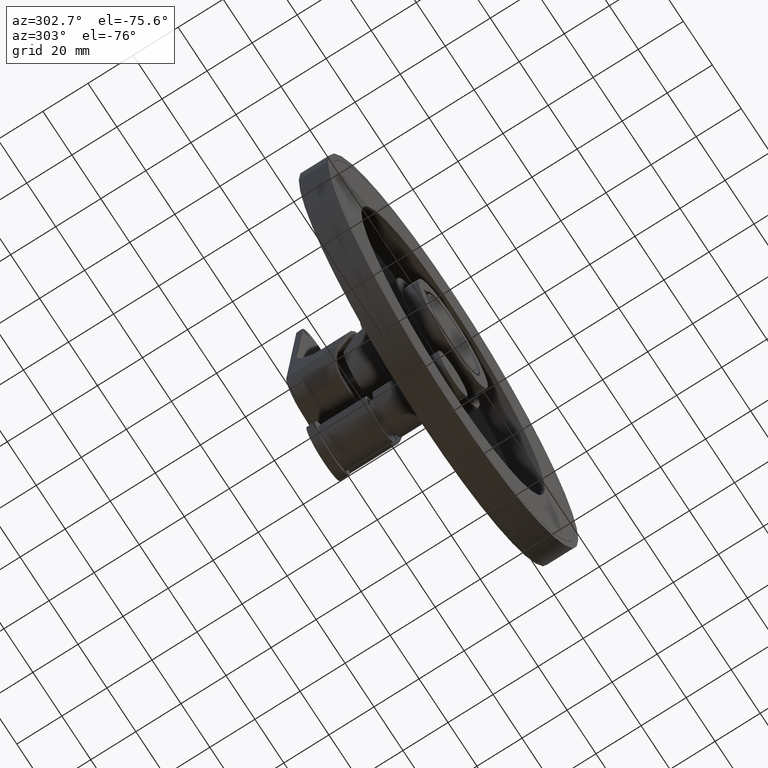
[diagram: clean part render]
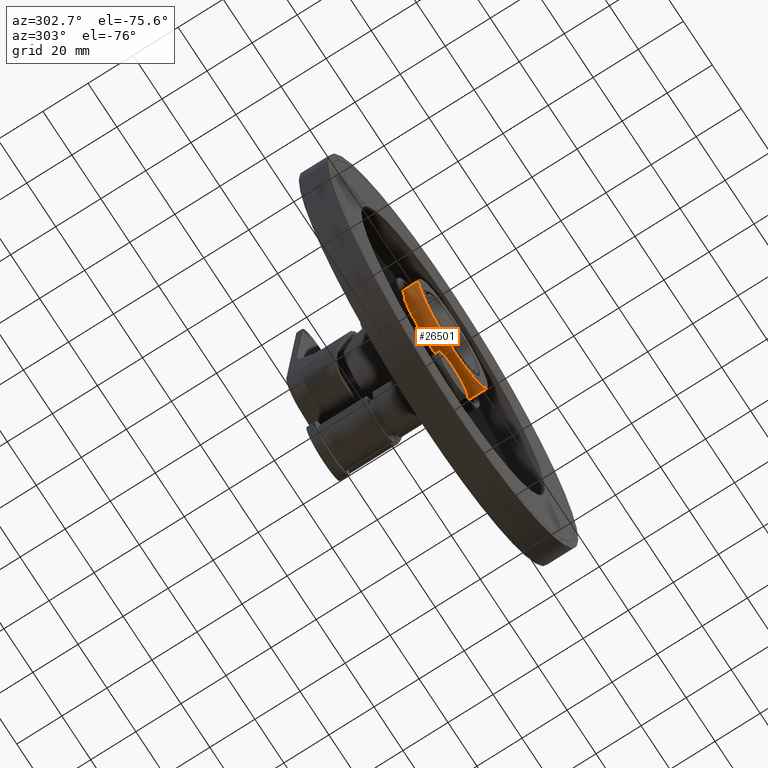
[diagram: same view with one face highlighted and labeled with its STEP entity id]
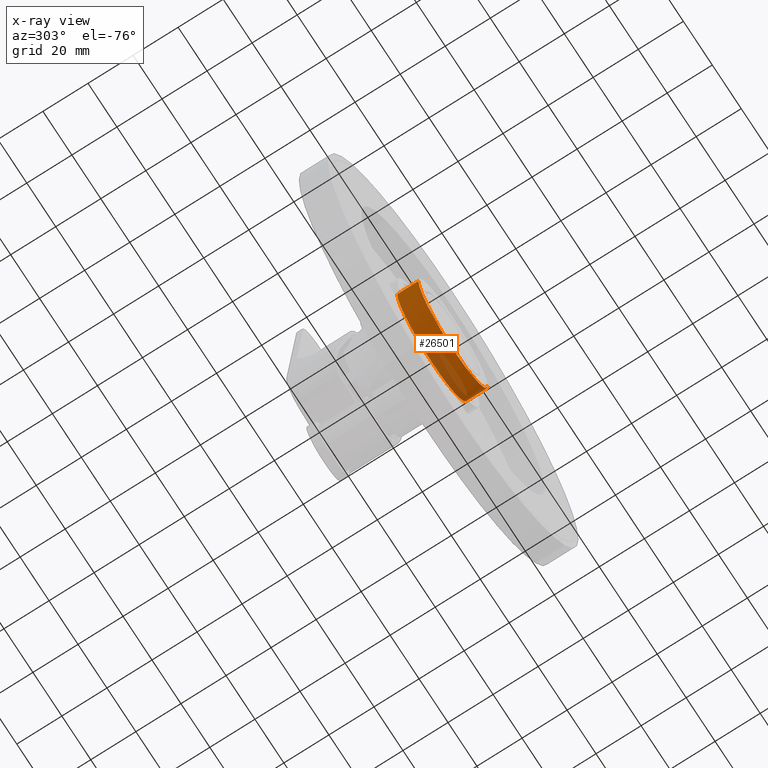
[diagram: x-ray of the same camera — body ghosted, the highlighted face saturated]
A machine part, auxiliary view. The second image highlights one B-rep face of the part: STEP entity #26501.
The next image is the same camera in x-ray: the body ghosted, the highlighted face saturated — about 25% of this face is hidden behind the body in this view.
In plain terms, the highlighted cylindrical surface (partial cylindrical patch) has radius 24.05 mm, axis along (0, -1, 0).
Its self-contained STEP definition (entity closure, byte-faithful):
#7095=CARTESIAN_POINT('',(0.E0,6.29E1,2.55E1));
#7096=DIRECTION('',(0.E0,-1.E0,0.E0));
#7097=DIRECTION('',(0.E0,0.E0,-1.E0));
#7098=AXIS2_PLACEMENT_3D('',#7095,#7096,#7097);
#7100=CARTESIAN_POINT('',(0.E0,6.29E1,2.55E1));
#7101=DIRECTION('',(0.E0,-1.E0,0.E0));
#7102=DIRECTION('',(-1.E0,0.E0,0.E0));
#7103=AXIS2_PLACEMENT_3D('',#7100,#7101,#7102);
#7105=DIRECTION('',(0.E0,1.E0,0.E0));
#7106=VECTOR('',#7105,9.4E0);
#7107=CARTESIAN_POINT('',(-2.405E1,5.35E1,2.55E1));
#7108=LINE('',#7107,#7106);
#7109=CARTESIAN_POINT('',(0.E0,5.35E1,2.55E1));
#7110=DIRECTION('',(0.E0,-1.E0,0.E0));
#7111=DIRECTION('',(-1.E0,0.E0,0.E0));
#7112=AXIS2_PLACEMENT_3D('',#7109,#7110,#7111);
#7114=DIRECTION('',(0.E0,1.E0,0.E0));
#7115=VECTOR('',#7114,9.4E0);
#7116=CARTESIAN_POINT('',(2.405E1,5.35E1,2.55E1));
#7117=LINE('',#7116,#7115);
#14774=CARTESIAN_POINT('',(2.405E1,5.35E1,2.55E1));
#14775=CARTESIAN_POINT('',(-2.405E1,5.35E1,2.55E1));
#14776=VERTEX_POINT('',#14774);
#14777=VERTEX_POINT('',#14775);
#17311=CARTESIAN_POINT('',(2.405E1,6.29E1,2.55E1));
#17313=VERTEX_POINT('',#17311);
#17317=CARTESIAN_POINT('',(-2.405E1,6.29E1,2.55E1));
#17318=VERTEX_POINT('',#17317);
#17321=CARTESIAN_POINT('',(0.E0,6.29E1,1.45E0));
#17322=VERTEX_POINT('',#17321);
#26489=CARTESIAN_POINT('',(0.E0,8.23E1,2.55E1));
#26490=DIRECTION('',(0.E0,-1.E0,0.E0));
#26491=DIRECTION('',(-1.E0,0.E0,0.E0));
#26492=AXIS2_PLACEMENT_3D('',#26489,#26490,#26491);
#26493=CYLINDRICAL_SURFACE('',#26492,2.405E1);
#26494=ORIENTED_EDGE('',*,*,#26436,.F.);
#26495=ORIENTED_EDGE('',*,*,#26467,.F.);
#26496=ORIENTED_EDGE('',*,*,#26415,.F.);
#26497=ORIENTED_EDGE('',*,*,#26386,.T.);
#26498=ORIENTED_EDGE('',*,*,#26412,.T.);
#26499=EDGE_LOOP('',(#26494,#26495,#26496,#26497,#26498));
#26500=FACE_OUTER_BOUND('',#26499,.F.);
#26501=ADVANCED_FACE('',(#26500),#26493,.T.);
#7099=CIRCLE('',#7098,2.405E1);
#7104=CIRCLE('',#7103,2.405E1);
#7113=CIRCLE('',#7112,2.405E1);
#26386=EDGE_CURVE('',#14777,#14776,#7113,.T.);
#26412=EDGE_CURVE('',#14776,#17313,#7117,.T.);
#26415=EDGE_CURVE('',#14777,#17318,#7108,.T.);
#26436=EDGE_CURVE('',#17322,#17313,#7099,.T.);
#26467=EDGE_CURVE('',#17318,#17322,#7104,.T.);